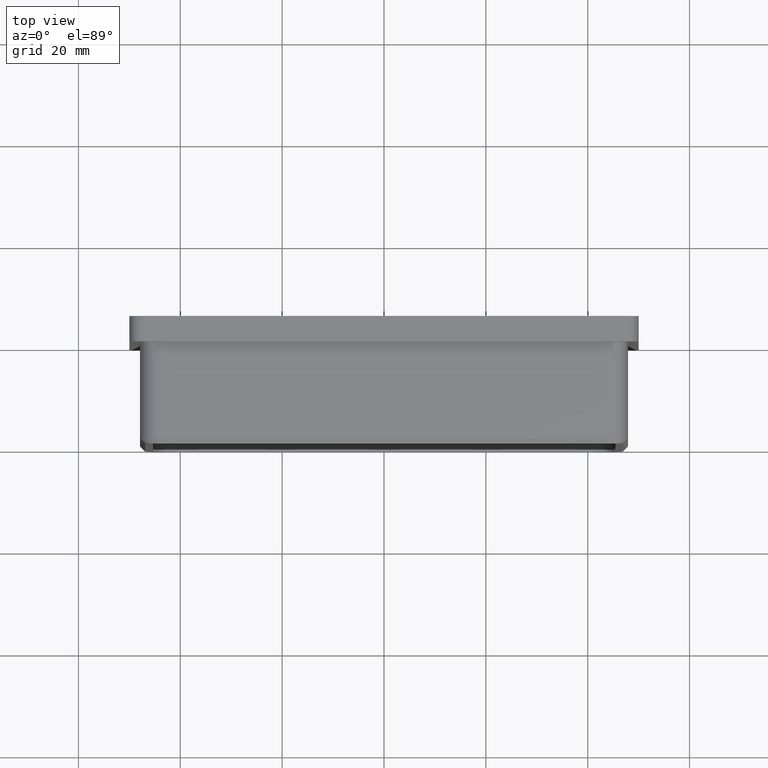
[diagram: clean part render]
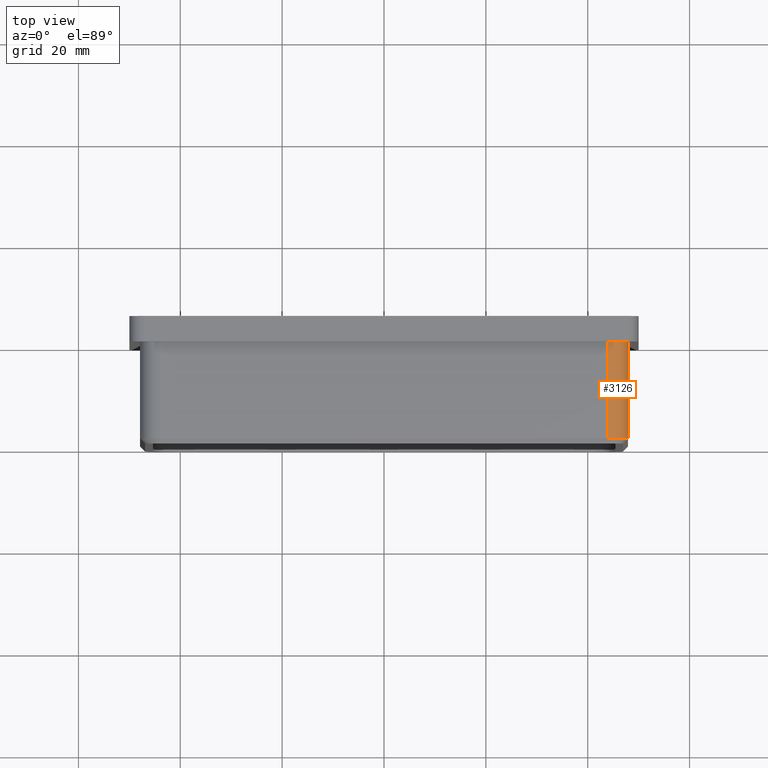
[diagram: same view with one face highlighted and labeled with its STEP entity id]
A machine part, top view. The second image highlights one B-rep face of the part: STEP entity #3126.
In plain terms, the highlighted cylindrical surface (edge-blend (fillet) strip) has radius 4 mm, axis along (0, 1, 0).
Its self-contained STEP definition (entity closure, byte-faithful):
#409 = DIRECTION ( 'NONE',  ( 0.000000000000000000, 1.000000000000000000, 0.000000000000000000 ) ) ;
#499 = EDGE_CURVE ( 'NONE', #11578, #14150, #5842, .T. ) ;
#554 = ORIENTED_EDGE ( 'NONE', *, *, #3246, .F. ) ;
#999 = DIRECTION ( 'NONE',  ( 0.000000000000000000, 0.000000000000000000, 1.000000000000000000 ) ) ;
#1233 = DIRECTION ( 'NONE',  ( 0.000000000000000000, 0.000000000000000000, -1.000000000000000000 ) ) ;
#1847 = FACE_OUTER_BOUND ( 'NONE', #7199, .T. ) ;
#2549 = AXIS2_PLACEMENT_3D ( 'NONE', #5332, #6665, #1233 ) ;
#3126 = ADVANCED_FACE ( 'NONE', ( #1847 ), #5796, .T. ) ;
#3246 = EDGE_CURVE ( 'NONE', #14150, #15323, #3602, .T. ) ;
#3304 = AXIS2_PLACEMENT_3D ( 'NONE', #9357, #6601, #999 ) ;
#3602 = LINE ( 'NONE', #3964, #8641 ) ;
#3767 = CARTESIAN_POINT ( 'NONE',  ( 47.90000000000001279, 0.000000000000000000, 43.89999999999999858 ) ) ;
#3964 = CARTESIAN_POINT ( 'NONE',  ( 47.90000000000001279, -20.00000000000000000, 43.89999999999999858 ) ) ;
#4299 = LINE ( 'NONE', #11411, #6474 ) ;
#4372 = AXIS2_PLACEMENT_3D ( 'NONE', #6230, #13538, #5064 ) ;
#5064 = DIRECTION ( 'NONE',  ( 0.000000000000000000, 0.000000000000000000, 1.000000000000000000 ) ) ;
#5332 = CARTESIAN_POINT ( 'NONE',  ( 43.90000000000000568, -18.99999999999998579, 43.89999999999999858 ) ) ;
#5796 = CYLINDRICAL_SURFACE ( 'NONE', #4372, 3.999999999999996447 ) ;
#5842 = CIRCLE ( 'NONE', #3304, 3.999999999999996447 ) ;
#6230 = CARTESIAN_POINT ( 'NONE',  ( 43.90000000000000568, -20.00000000000000000, 43.89999999999999858 ) ) ;
#6474 = VECTOR ( 'NONE', #409, 1000.000000000000000 ) ;
#6601 = DIRECTION ( 'NONE',  ( 0.000000000000000000, 1.000000000000000000, 0.000000000000000000 ) ) ;
#6665 = DIRECTION ( 'NONE',  ( 0.000000000000000000, 1.000000000000000000, 0.000000000000000000 ) ) ;
#6945 = CARTESIAN_POINT ( 'NONE',  ( 47.90000000000001279, -18.99999999999998579, 43.89999999999999858 ) ) ;
#7199 = EDGE_LOOP ( 'NONE', ( #9826, #15064, #554, #16654 ) ) ;
#8641 = VECTOR ( 'NONE', #15186, 1000.000000000000000 ) ;
#8731 = CIRCLE ( 'NONE', #2549, 3.999999999999996447 ) ;
#9357 = CARTESIAN_POINT ( 'NONE',  ( 43.90000000000000568, 0.000000000000000000, 43.89999999999999858 ) ) ;
#9826 = ORIENTED_EDGE ( 'NONE', *, *, #17772, .F. ) ;
#10015 = CARTESIAN_POINT ( 'NONE',  ( 43.89999999999997726, 0.000000000000000000, 47.90000000000000568 ) ) ;
#11411 = CARTESIAN_POINT ( 'NONE',  ( 43.90000000000000568, -20.00000000000000000, 47.90000000000000568 ) ) ;
#11578 = VERTEX_POINT ( 'NONE', #10015 ) ;
#12773 = EDGE_CURVE ( 'NONE', #17454, #15323, #8731, .T. ) ;
#13538 = DIRECTION ( 'NONE',  ( 0.000000000000000000, 1.000000000000000000, 0.000000000000000000 ) ) ;
#14150 = VERTEX_POINT ( 'NONE', #3767 ) ;
#15064 = ORIENTED_EDGE ( 'NONE', *, *, #12773, .T. ) ;
#15186 = DIRECTION ( 'NONE',  ( -0.000000000000000000, -1.000000000000000000, -0.000000000000000000 ) ) ;
#15323 = VERTEX_POINT ( 'NONE', #6945 ) ;
#16094 = CARTESIAN_POINT ( 'NONE',  ( 43.90000000000000568, -18.99999999999998579, 47.90000000000000568 ) ) ;
#16654 = ORIENTED_EDGE ( 'NONE', *, *, #499, .F. ) ;
#17454 = VERTEX_POINT ( 'NONE', #16094 ) ;
#17772 = EDGE_CURVE ( 'NONE', #17454, #11578, #4299, .T. ) ;